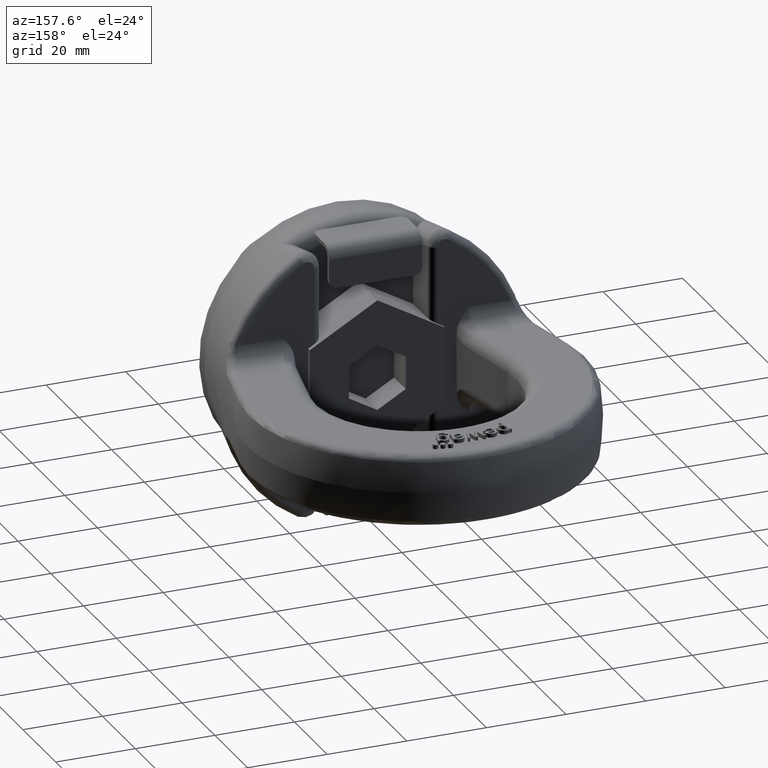
[diagram: clean part render]
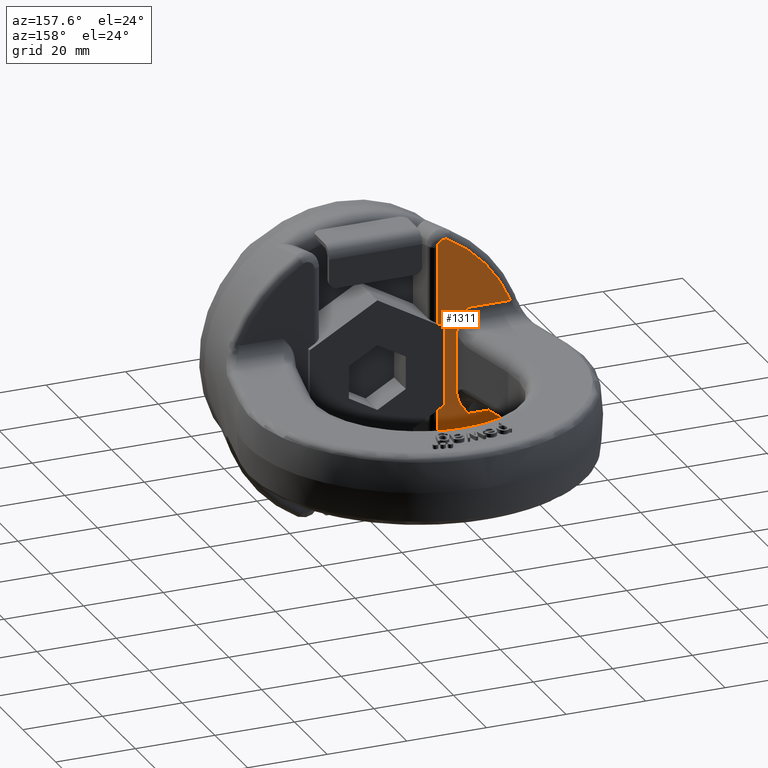
[diagram: same view with one face highlighted and labeled with its STEP entity id]
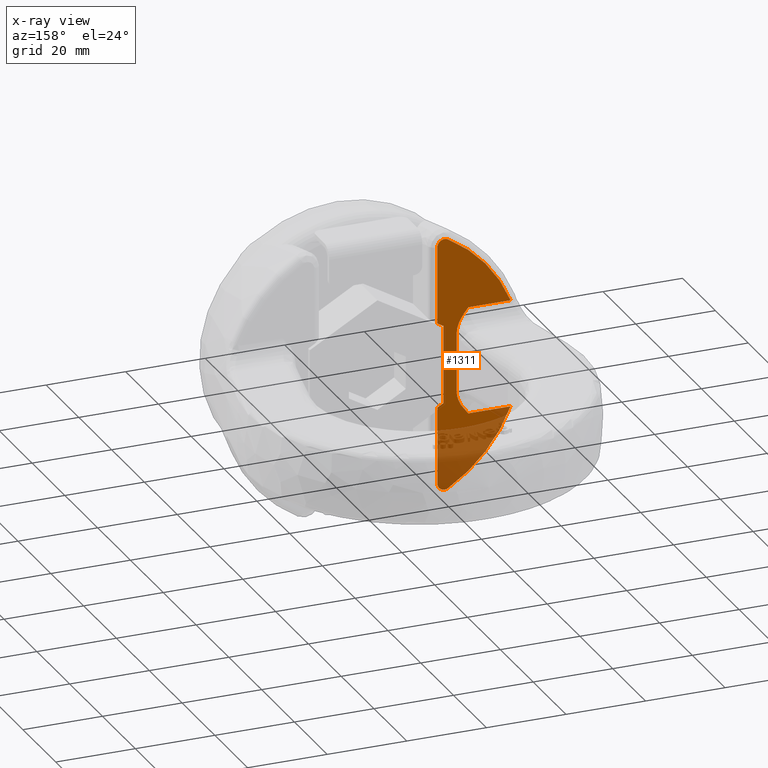
[diagram: x-ray of the same camera — body ghosted, the highlighted face saturated]
A machine part, auxiliary view. The second image highlights one B-rep face of the part: STEP entity #1311.
The next image is the same camera in x-ray: the body ghosted, the highlighted face saturated — about 31% of this face is hidden behind the body in this view.
In plain terms, the highlighted planar face has unit normal (-0, 1, 0).
Its self-contained STEP definition (entity closure, byte-faithful):
#1091=FACE_OUTER_BOUND('',#1823,.T.);
#1311=ADVANCED_FACE('',(#1091),#1550,.T.);
#1550=PLANE('',#5126);
#1671=CIRCLE('',#5124,36.4806993214114);
#1672=CIRCLE('',#5125,36.4806993214114);
#1823=EDGE_LOOP('',(#2767,#2768,#2769,#2770,#2771,#2772,#2773,#2774,#2775,
#2776,#2777,#2778,#2779,#2780));
#2125=LINE('',#6578,#2405);
#2126=LINE('',#6580,#2406);
#2127=LINE('',#6582,#2407);
#2128=LINE('',#6584,#2408);
#2129=LINE('',#6586,#2409);
#2130=LINE('',#6613,#2410);
#2131=LINE('',#6622,#2411);
#2132=LINE('',#6631,#2412);
#2405=VECTOR('',#5437,1.);
#2406=VECTOR('',#5438,1.);
#2407=VECTOR('',#5439,1.);
#2408=VECTOR('',#5440,1.);
#2409=VECTOR('',#5441,1.);
#2410=VECTOR('',#5444,1.);
#2411=VECTOR('',#5445,1.);
#2412=VECTOR('',#5446,1.);
#2767=ORIENTED_EDGE('',*,*,#4331,.T.);
#2768=ORIENTED_EDGE('',*,*,#4332,.T.);
#2769=ORIENTED_EDGE('',*,*,#4333,.T.);
#2770=ORIENTED_EDGE('',*,*,#4334,.T.);
#2771=ORIENTED_EDGE('',*,*,#4335,.T.);
#2772=ORIENTED_EDGE('',*,*,#4336,.T.);
#2773=ORIENTED_EDGE('',*,*,#4337,.T.);
#2774=ORIENTED_EDGE('',*,*,#4338,.T.);
#2775=ORIENTED_EDGE('',*,*,#4339,.T.);
#2776=ORIENTED_EDGE('',*,*,#4340,.T.);
#2777=ORIENTED_EDGE('',*,*,#4341,.T.);
#2778=ORIENTED_EDGE('',*,*,#4342,.T.);
#2779=ORIENTED_EDGE('',*,*,#4343,.T.);
#2780=ORIENTED_EDGE('',*,*,#4344,.T.);
#3943=VERTEX_POINT('',#6576);
#3944=VERTEX_POINT('',#6577);
#3945=VERTEX_POINT('',#6579);
#3946=VERTEX_POINT('',#6581);
#3947=VERTEX_POINT('',#6583);
#3948=VERTEX_POINT('',#6585);
#3949=VERTEX_POINT('',#6587);
#3950=VERTEX_POINT('',#6610);
#3951=VERTEX_POINT('',#6612);
#3952=VERTEX_POINT('',#6614);
#3953=VERTEX_POINT('',#6621);
#3954=VERTEX_POINT('',#6623);
#3955=VERTEX_POINT('',#6630);
#3956=VERTEX_POINT('',#6632);
#4331=EDGE_CURVE('',#3943,#3944,#4875,.T.);
#4332=EDGE_CURVE('',#3944,#3945,#2125,.T.);
#4333=EDGE_CURVE('',#3945,#3946,#2126,.T.);
#4334=EDGE_CURVE('',#3946,#3947,#2127,.T.);
#4335=EDGE_CURVE('',#3947,#3948,#2128,.T.);
#4336=EDGE_CURVE('',#3948,#3949,#2129,.T.);
#4337=EDGE_CURVE('',#3949,#3950,#4876,.T.);
#4338=EDGE_CURVE('',#3950,#3951,#1671,.T.);
#4339=EDGE_CURVE('',#3951,#3952,#2130,.T.);
#4340=EDGE_CURVE('',#3952,#3953,#4877,.T.);
#4341=EDGE_CURVE('',#3953,#3954,#2131,.T.);
#4342=EDGE_CURVE('',#3954,#3955,#4878,.T.);
#4343=EDGE_CURVE('',#3955,#3956,#2132,.T.);
#4344=EDGE_CURVE('',#3956,#3943,#1672,.T.);
#4875=B_SPLINE_CURVE_WITH_KNOTS('',3,(#6554,#6555,#6556,#6557,#6558,#6559,
#6560,#6561,#6562,#6563,#6564,#6565,#6566,#6567,#6568,#6569,#6570,#6571,
#6572,#6573,#6574,#6575),.UNSPECIFIED.,.F.,.F.,(4,3,3,3,3,3,3,4),(0.,0.157414620977897,
0.3149119059571,0.471399204350587,0.628943779244303,0.789678921304662,0.954460240733227,
1.),.UNSPECIFIED.);
#4876=B_SPLINE_CURVE_WITH_KNOTS('',3,(#6588,#6589,#6590,#6591,#6592,#6593,
#6594,#6595,#6596,#6597,#6598,#6599,#6600,#6601,#6602,#6603,#6604,#6605,
#6606,#6607,#6608,#6609),.UNSPECIFIED.,.F.,.F.,(4,3,3,3,3,3,3,4),(0.,0.167883296718803,
0.335891115342668,0.501843620007422,0.66365446252716,0.82174166024937,0.978143883835086,
1.),.UNSPECIFIED.);
#4877=B_SPLINE_CURVE_WITH_KNOTS('',3,(#6615,#6616,#6617,#6618,#6619,#6620),
 .UNSPECIFIED.,.F.,.F.,(4,2,4),(0.,0.5,1.),.UNSPECIFIED.);
#4878=B_SPLINE_CURVE_WITH_KNOTS('',3,(#6624,#6625,#6626,#6627,#6628,#6629),
 .UNSPECIFIED.,.F.,.F.,(4,2,4),(0.,0.5,1.),.UNSPECIFIED.);
#5124=AXIS2_PLACEMENT_3D('',#6611,#5442,#5443);
#5125=AXIS2_PLACEMENT_3D('',#6633,#5447,#5448);
#5126=AXIS2_PLACEMENT_3D('',#6634,#5449,#5450);
#5437=DIRECTION('',(0.,0.,-1.));
#5438=DIRECTION('',(-0.866025403784441,-4.53762340165498E-16,-0.499999999999996));
#5439=DIRECTION('',(0.,0.,-1.));
#5440=DIRECTION('',(0.866025403784442,4.53762340165498E-16,-0.499999999999994));
#5441=DIRECTION('',(2.34291072916505E-15,0.,-1.));
#5442=DIRECTION('',(-5.23959618485329E-16,1.,-1.2275906117985E-30));
#5443=DIRECTION('',(1.,5.70621783544152E-16,2.34291072916505E-15));
#5444=DIRECTION('',(1.,5.23959618485329E-16,2.34291072916505E-15));
#5445=DIRECTION('',(0.,0.,1.));
#5446=DIRECTION('',(-1.,-5.23959618485329E-16,6.90322823278748E-32));
#5447=DIRECTION('',(-5.23959618485329E-16,1.,0.));
#5448=DIRECTION('',(-1.,-5.70621783544152E-16,0.));
#5449=DIRECTION('',(-5.23959618485329E-16,1.,0.));
#5450=DIRECTION('',(-1.,-5.23886489744996E-16,0.));
#6554=CARTESIAN_POINT('',(-18.1798049658574,24.,31.6280905902114));
#6555=CARTESIAN_POINT('',(-18.008469297464,24.,31.7265742159049));
#6556=CARTESIAN_POINT('',(-17.8179331816268,24.,31.7971798193543));
#6557=CARTESIAN_POINT('',(-17.6236966791657,24.,31.8336094351255));
#6558=CARTESIAN_POINT('',(-17.4293941081274,24.,31.8700514422487));
#6559=CARTESIAN_POINT('',(-17.2260491713311,24.,31.8732563823712));
#6560=CARTESIAN_POINT('',(-17.0306986167803,24.,31.8429303237424));
#6561=CARTESIAN_POINT('',(-16.8365382078375,24.,31.812789022334));
#6562=CARTESIAN_POINT('',(-16.6449799772161,24.,31.7487455750994));
#6563=CARTESIAN_POINT('',(-16.4715071192837,24.,31.6564746153549));
#6564=CARTESIAN_POINT('',(-16.2968289663809,24.,31.5635625540282));
#6565=CARTESIAN_POINT('',(-16.1357729300165,24.,31.4395988874448));
#6566=CARTESIAN_POINT('',(-16.0006857268093,24.,31.2950424771021));
#6567=CARTESIAN_POINT('',(-15.862875669509,24.,31.147572348774));
#6568=CARTESIAN_POINT('',(-15.7483742006204,24.,30.9747804731861));
#6569=CARTESIAN_POINT('',(-15.6655881040099,24.,30.7907002926934));
#6570=CARTESIAN_POINT('',(-15.5807460343141,24.,30.6020485245535));
#6571=CARTESIAN_POINT('',(-15.5269068869623,24.,30.3964803690258));
#6572=CARTESIAN_POINT('',(-15.5079612444704,24.,30.1904980177354));
#6573=CARTESIAN_POINT('',(-15.5026587337894,24.,30.1328476309371));
#6574=CARTESIAN_POINT('',(-15.5,24.,30.0748931229261));
#6575=CARTESIAN_POINT('',(-15.5,24.,30.0169993951353));
#6576=CARTESIAN_POINT('',(-18.1798049658574,24.,31.6280905902114));
#6577=CARTESIAN_POINT('',(-15.5,24.,30.0169993951353));
#6578=CARTESIAN_POINT('',(-15.5,24.,47.3));
#6579=CARTESIAN_POINT('',(-15.5,24.,10.6809799800081));
#6580=CARTESIAN_POINT('',(-3.25969339211801,24.,17.7479242950323));
#6581=CARTESIAN_POINT('',(-17.,24.,9.81495457622366));
#6582=CARTESIAN_POINT('',(-17.,24.,47.3));
#6583=CARTESIAN_POINT('',(-17.,24.,-9.8149545762237));
#6584=CARTESIAN_POINT('',(1.70650079950196,24.,-20.6151578484119));
#6585=CARTESIAN_POINT('',(-15.5,24.,-10.6809799800081));
#6586=CARTESIAN_POINT('',(-15.4999999999999,24.,-47.3));
#6587=CARTESIAN_POINT('',(-15.4999999999999,24.,-30.0169993951352));
#6588=CARTESIAN_POINT('',(-15.4999999999999,24.,-30.0169993951352));
#6589=CARTESIAN_POINT('',(-15.4999999999998,24.,-30.227767263751));
#6590=CARTESIAN_POINT('',(-15.5361144285616,24.,-30.4414492719591));
#6591=CARTESIAN_POINT('',(-15.6056623577694,24.,-30.6404120322528));
#6592=CARTESIAN_POINT('',(-15.6752389488143,24.,-30.8394567883484));
#6593=CARTESIAN_POINT('',(-15.78029473507,24.,-31.0293331223427));
#6594=CARTESIAN_POINT('',(-15.9125781949154,24.,-31.1935305742167));
#6595=CARTESIAN_POINT('',(-16.0432255324663,24.,-31.3556971817808));
#6596=CARTESIAN_POINT('',(-16.2042277611958,24.,-31.4973902325242));
#6597=CARTESIAN_POINT('',(-16.3821555394229,24.,-31.6055957829972));
#6598=CARTESIAN_POINT('',(-16.5556942830472,24.,-31.7111321723647));
#6599=CARTESIAN_POINT('',(-16.7502975939011,24.,-31.7877730005517));
#6600=CARTESIAN_POINT('',(-16.9493171881056,24.,-31.8283294567839));
#6601=CARTESIAN_POINT('',(-17.1438514377205,24.,-31.8679718840118));
#6602=CARTESIAN_POINT('',(-17.3480396609454,24.,-31.8742490465603));
#6603=CARTESIAN_POINT('',(-17.5446345521702,24.,-31.8465805617073));
#6604=CARTESIAN_POINT('',(-17.7392182004288,24.,-31.8191951363234));
#6605=CARTESIAN_POINT('',(-17.9316837016803,24.,-31.7578553831553));
#6606=CARTESIAN_POINT('',(-18.106440980269,24.,-31.6680074489922));
#6607=CARTESIAN_POINT('',(-18.1312003922759,24.,-31.6552778961068));
#6608=CARTESIAN_POINT('',(-18.1556681330245,24.,-31.6419644253119));
#6609=CARTESIAN_POINT('',(-18.1798049658573,24.,-31.6280905902113));
#6610=CARTESIAN_POINT('',(-18.1798049658573,24.,-31.6280905902113));
#6611=CARTESIAN_POINT('',(1.39148938371701E-13,24.,3.26013540662984E-28));
#6612=CARTESIAN_POINT('',(-33.890875217073,24.,-13.5000000000001));
#6613=CARTESIAN_POINT('',(-13.7,24.,-13.5));
#6614=CARTESIAN_POINT('',(-23.276520825302,24.,-13.5000000000001));
#6615=CARTESIAN_POINT('',(-23.276520825302,24.,-13.5000000000001));
#6616=CARTESIAN_POINT('',(-22.4956224276136,24.,-12.6265397417254));
#6617=CARTESIAN_POINT('',(-21.7570577426748,24.,-11.6899434982067));
#6618=CARTESIAN_POINT('',(-20.6762106868907,24.,-9.62488698180327));
#6619=CARTESIAN_POINT('',(-20.3215922554932,24.,-8.47490565799253));
#6620=CARTESIAN_POINT('',(-20.3215922554932,24.,-7.29099635776177));
#6621=CARTESIAN_POINT('',(-20.3215922554932,24.,-7.29099635776177));
#6622=CARTESIAN_POINT('',(-20.3215922554932,24.,47.3));
#6623=CARTESIAN_POINT('',(-20.3215922554932,24.,7.29099635776172));
#6624=CARTESIAN_POINT('',(-20.3215922554932,24.,7.29099635776173));
#6625=CARTESIAN_POINT('',(-20.3215922554932,24.,8.47490565799249));
#6626=CARTESIAN_POINT('',(-20.6762106868907,24.,9.62488698180323));
#6627=CARTESIAN_POINT('',(-21.7570577426749,24.,11.6899434982067));
#6628=CARTESIAN_POINT('',(-22.4956224276126,24.,12.6265397417262));
#6629=CARTESIAN_POINT('',(-23.276520825302,24.,13.5));
#6630=CARTESIAN_POINT('',(-23.276520825302,24.,13.5));
#6631=CARTESIAN_POINT('',(-20.3215922554932,24.,13.5));
#6632=CARTESIAN_POINT('',(-33.8908752170733,24.,13.5));
#6633=CARTESIAN_POINT('',(-1.94425212147086E-13,24.,0.));
#6634=CARTESIAN_POINT('',(-20.3215922554932,24.,47.3));